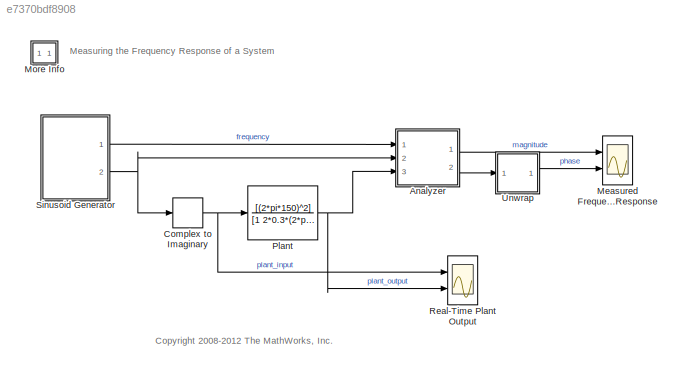
MODEL slx_e7370bdf8908
KIND model
CONFIG AbsTol = auto
CONFIG EnableMultiTasking = on
CONFIG FixedStep = 1e-4
CONFIG MaxStep = 1e-4
CONFIG MinStep = auto
CONFIG RelTol = 1e-3
CONFIG SampleTimeConstraint = Unconstrained
CONFIG Solver = ode5
CONFIG SolverName = ode5
CONFIG StartTime = 0.0
CONFIG StopTime = Inf
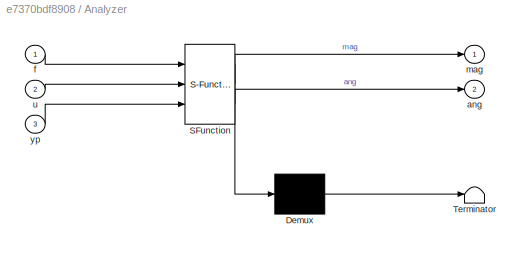
BLOCK [SubSystem] Analyzer
  ErrorFcn = Stateflow.Translate.translate
  PermitHierarchicalResolution = ExplicitOnly
  Ports = [3, 2]
  RequestExecContextInheritance = off
  SFBlockType = Chart
  TreatAsAtomicUnit = on
  Variant = off
BLOCK [Demux] Analyzer/ Demux 
  Outputs = 1
  Ports = [1, 1]
BLOCK [S-Function] Analyzer/ SFunction 
  EnableBusSupport = off
  FunctionName = sf_sfun
  PortCounts = [3 3]
  Ports = [3, 3]
  SFcnIsStateOwnerBlock = off
  SFunctionDeploymentMode = off
  Tag = Stateflow S-Function sf_spectrum_analyzer 2
BLOCK [Terminator] Analyzer/ Terminator 
BLOCK [Outport] Analyzer/ang
  IconDisplay = Port number
  Port = 2
BLOCK [Inport] Analyzer/f
  IconDisplay = Port number
BLOCK [Outport] Analyzer/mag
  IconDisplay = Port number
BLOCK [Inport] Analyzer/u
  IconDisplay = Port number
  Port = 2
BLOCK [Inport] Analyzer/yp
  IconDisplay = Port number
  Port = 3
BLOCK [ComplexToRealImag] Complex to Imaginary
  Output = Imag
  Ports = [1, 1]
BLOCK [Scope] Measured Frequency Response
  NumInputPorts = 2
  Ports = [2]
  ScopeSpecificationString = Simulink.scopes.TimeScopeBlockCfg('CurrentConfiguration', extmgr.ConfigurationSet(extmgr.Configuration('Core','General UI',true),extmgr.Configuration('Core','Source UI',true),extmgr.Configuration('Sources','WiredSimulink',true,'DataLoggingDecimation','1','DataLoggingSaveFormat','StructureWithTime','PointsPerSignal',225000),extmgr.Configuration('Visuals','Time Domain',true,'SerializedDisplays',{str...<+2476ch>
BLOCK [SubSystem] More Info
  OpenFcn = showdemo(bdroot(gcs))
  Ports = []
  RequestExecContextInheritance = off
  Variant = off
BLOCK [TransferFcn] Plant
  Denominator = [1 2*0.3*(2*pi*150) (2*pi*150)^2]
  Numerator = [(2*pi*150)^2]
BLOCK [Scope] Real-Time Plant Output
  NumInputPorts = 2
  Ports = [2]
  ScopeSpecificationString = Simulink.scopes.TimeScopeBlockCfg('CurrentConfiguration', extmgr.ConfigurationSet(extmgr.Configuration('Core','General UI',true),extmgr.Configuration('Core','Source UI',true),extmgr.Configuration('Sources','WiredSimulink',true,'DataLoggingVariableName','ScopeData1','DataLoggingDecimation','1','DataLoggingSaveFormat','StructureWithTime','PointsPerSignal',225000),extmgr.Configuration('Visuals','Time...<+2515ch>
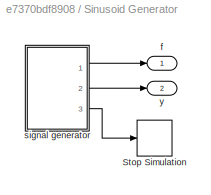
BLOCK [SubSystem] Sinusoid Generator
  Ports = [0, 2]
  RequestExecContextInheritance = off
  TreatAsAtomicUnit = on
  Variant = off
BLOCK [Stop] Sinusoid Generator/Stop Simulation
BLOCK [Outport] Sinusoid Generator/f
  IconDisplay = Port number
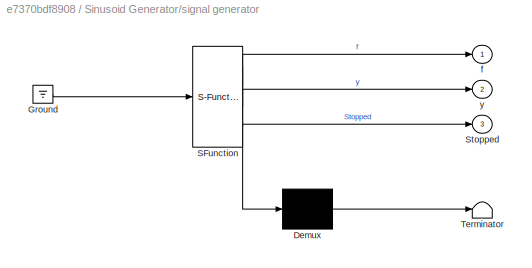
BLOCK [SubSystem] Sinusoid Generator/signal generator
  ErrorFcn = Stateflow.Translate.translate
  PermitHierarchicalResolution = ExplicitOnly
  Ports = [0, 3]
  RequestExecContextInheritance = off
  SFBlockType = Chart
  TreatAsAtomicUnit = on
  Variant = off
BLOCK [Demux] Sinusoid Generator/signal generator/ Demux 
  Outputs = 1
  Ports = [1, 1]
BLOCK [Ground] Sinusoid Generator/signal generator/ Ground 
BLOCK [S-Function] Sinusoid Generator/signal generator/ SFunction 
  EnableBusSupport = off
  FunctionName = sf_sfun
  Parameters = delay,fstart,fstep,fstop
  PortCounts = [1 4]
  Ports = [1, 4]
  SFcnIsStateOwnerBlock = off
  SFunctionDeploymentMode = off
  Tag = Stateflow S-Function sf_spectrum_analyzer 1
BLOCK [Outport] Sinusoid Generator/signal generator/ Stopped
  IconDisplay = Port number
  Port = 3
BLOCK [Terminator] Sinusoid Generator/signal generator/ Terminator 
BLOCK [Outport] Sinusoid Generator/signal generator/f
  IconDisplay = Port number
BLOCK [Outport] Sinusoid Generator/signal generator/y
  IconDisplay = Port number
  Port = 2
BLOCK [Outport] Sinusoid Generator/y
  IconDisplay = Port number
  Port = 2
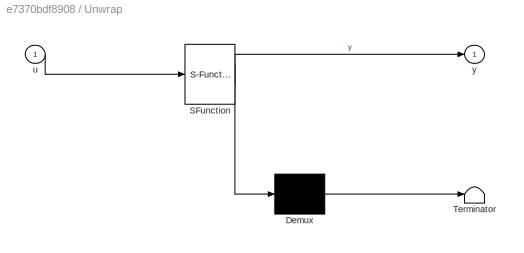
BLOCK [SubSystem] Unwrap
  ErrorFcn = Stateflow.Translate.translate
  PermitHierarchicalResolution = ExplicitOnly
  Ports = [1, 1]
  RequestExecContextInheritance = off
  SFBlockType = Chart
  TreatAsAtomicUnit = on
  Variant = off
BLOCK [Demux] Unwrap/ Demux 
  Outputs = 1
  Ports = [1, 1]
BLOCK [S-Function] Unwrap/ SFunction 
  EnableBusSupport = off
  FunctionName = sf_sfun
  PortCounts = [1 2]
  Ports = [1, 2]
  SFcnIsStateOwnerBlock = off
  SFunctionDeploymentMode = off
  Tag = Stateflow S-Function sf_spectrum_analyzer 4
BLOCK [Terminator] Unwrap/ Terminator 
BLOCK [Inport] Unwrap/u
  IconDisplay = Port number
BLOCK [Outport] Unwrap/y
  IconDisplay = Port number
ANNOTATION (root): <copyright redacted>
ANNOTATION (root): Measuring the Frequency Response of a System
LINE Analyzer:1 -> Measured Frequency Response:1
LINE Analyzer:2 -> Unwrap:1
NET Complex to Imaginary:1 -> Plant:1, Real-Time Plant Output:1
NET Plant:1 -> Analyzer:3, Real-Time Plant Output:2
LINE Sinusoid Generator/signal generator:1 -> Sinusoid Generator/f:1
LINE Sinusoid Generator/signal generator:2 -> Sinusoid Generator/y:1
LINE Sinusoid Generator/signal generator:3 -> Sinusoid Generator/Stop Simulation:1
LINE Sinusoid Generator:1 -> Analyzer:1
NET Sinusoid Generator:2 -> Analyzer:2, Complex to Imaginary:1
LINE Unwrap:1 -> Measured Frequency Response:2
note: NET lines group one-source signal fan-out (src -> all destinations, sorted); 1:1 wires keep LINE
CHART Sinusoid Generator/signal generator states=2 transitions=4
  STATE_LABEL 'A\nen, du:\nt = temporalCount(sec);\nyprev = y;\ny = exp(2*pi*f*t*1j);\n'
  STATE_LABEL 'Stopped'
CHART Analyzer states=1 transitions=1
  STATE_LABEL 'A\nen:\ny = 0j; yn = 0j;\ndu:\ny = y + u.*yp;\nyn = yn + u.*imag(u);'
CHART Unwrap states=1 transitions=3
  STATE_LABEL 'A\nen, du:\ny = u + offset;\nyprev = y;'
